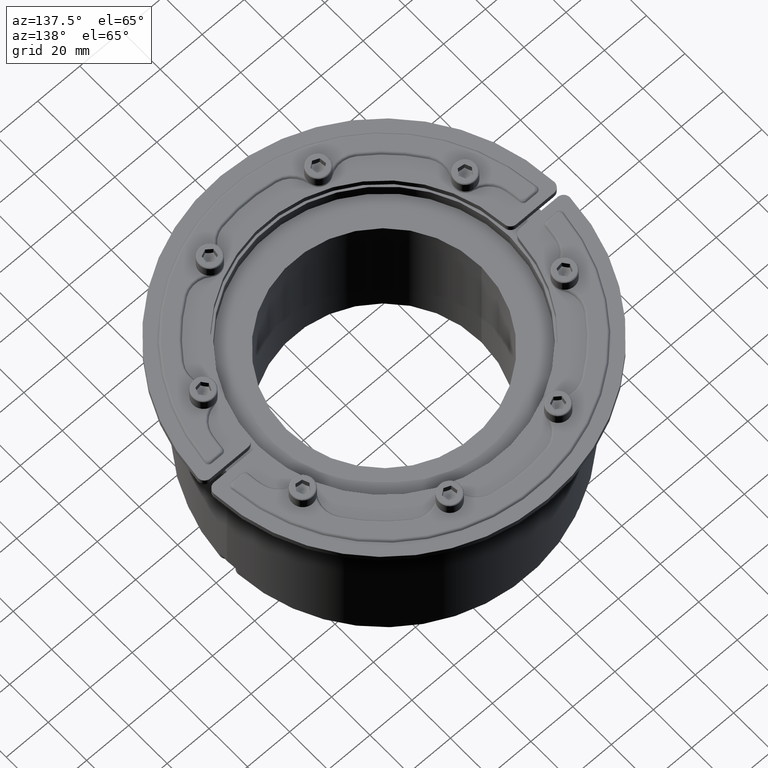
[diagram: clean part render]
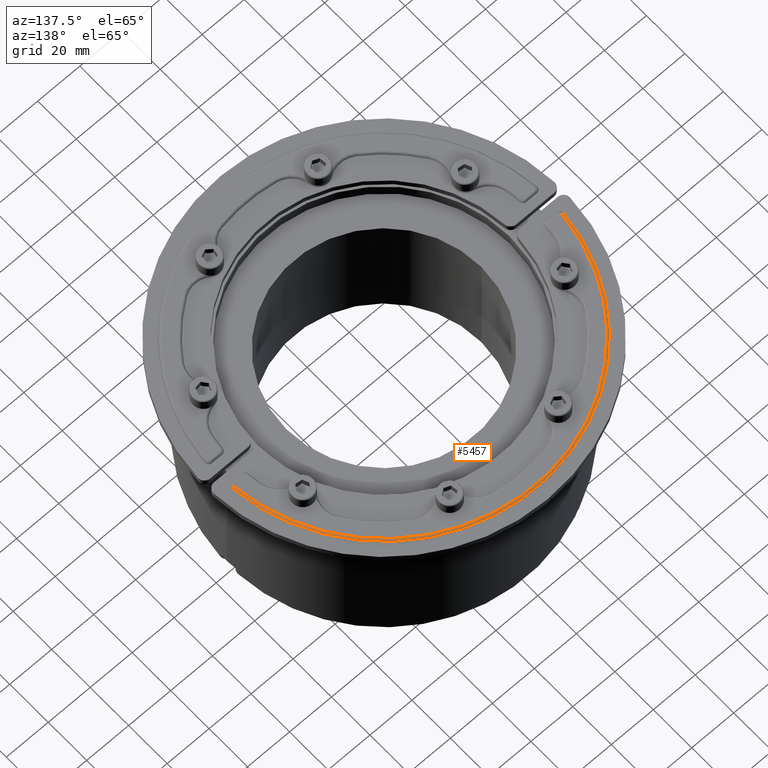
[diagram: same view with one face highlighted and labeled with its STEP entity id]
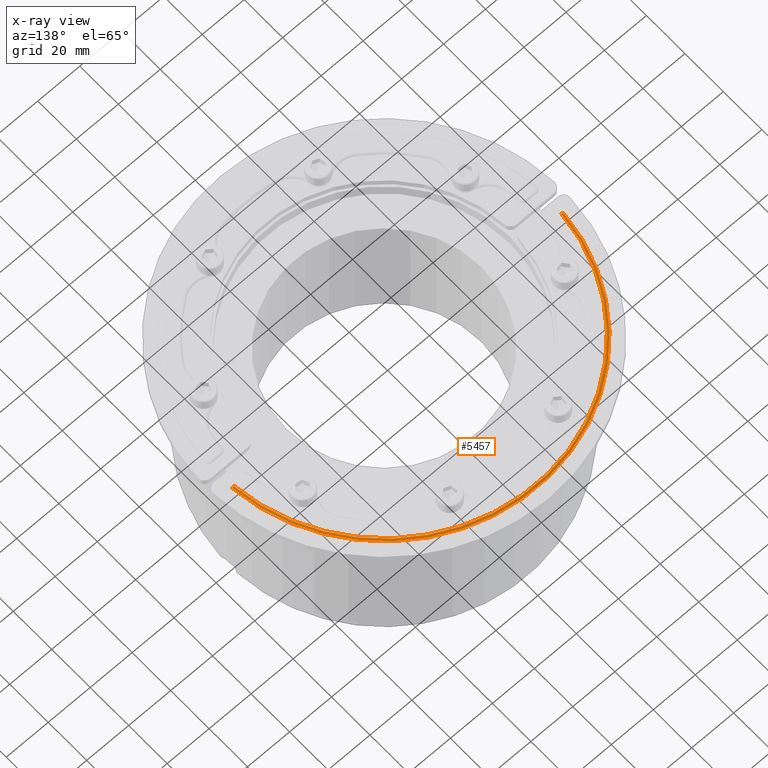
[diagram: x-ray of the same camera — body ghosted, the highlighted face saturated]
A machine part, auxiliary view. The second image highlights one B-rep face of the part: STEP entity #5457.
The next image is the same camera in x-ray: the body ghosted, the highlighted face saturated — about 0% of this face is hidden behind the body in this view.
In plain terms, the highlighted toroidal blend (fillet) surface has major radius 78.3453 mm and minor (blend) radius 1 mm.
Its self-contained STEP definition (entity closure, byte-faithful):
#93=TOROIDAL_SURFACE('',#6036,78.3452994616207,1.);
#568=FACE_OUTER_BOUND('',#895,.T.);
#895=EDGE_LOOP('',(#4249,#4250,#4251,#4252));
#1844=CIRCLE('',#5997,78.3452994616207);
#1874=CIRCLE('',#6035,1.);
#1875=CIRCLE('',#6037,1.);
#1876=CIRCLE('',#6038,79.2113248654052);
#2339=VERTEX_POINT('',#9347);
#2340=VERTEX_POINT('',#9354);
#2379=VERTEX_POINT('',#9525);
#2380=VERTEX_POINT('',#9534);
#2996=EDGE_CURVE('',#2340,#2339,#1844,.T.);
#3045=EDGE_CURVE('',#2340,#2379,#1874,.T.);
#3047=EDGE_CURVE('',#2339,#2380,#1875,.T.);
#3048=EDGE_CURVE('',#2380,#2379,#1876,.T.);
#4249=ORIENTED_EDGE('',*,*,#3047,.T.);
#4250=ORIENTED_EDGE('',*,*,#3048,.T.);
#4251=ORIENTED_EDGE('',*,*,#3045,.F.);
#4252=ORIENTED_EDGE('',*,*,#2996,.T.);
#5457=ADVANCED_FACE('',(#568),#93,.T.);
#5997=AXIS2_PLACEMENT_3D('',#9355,#7284,#7285);
#6035=AXIS2_PLACEMENT_3D('',#9526,#7376,#7377);
#6036=AXIS2_PLACEMENT_3D('',#9533,#7378,#7379);
#6037=AXIS2_PLACEMENT_3D('',#9535,#7380,#7381);
#6038=AXIS2_PLACEMENT_3D('',#9536,#7382,#7383);
#7284=DIRECTION('center_axis',(0.,0.,-1.));
#7285=DIRECTION('ref_axis',(-5.0037135246487E-14,1.,0.));
#7376=DIRECTION('center_axis',(-0.0906142452613713,-0.995886067055721,-4.42262256619462E-15));
#7377=DIRECTION('ref_axis',(0.,-4.44089209850063E-15,1.));
#7378=DIRECTION('center_axis',(0.,0.,-1.));
#7379=DIRECTION('ref_axis',(-1.,0.,0.));
#7380=DIRECTION('center_axis',(-0.0906142452615494,0.995886067055705,0.));
#7381=DIRECTION('ref_axis',(0.,0.,1.));
#7382=DIRECTION('center_axis',(0.,0.,1.));
#7383=DIRECTION('ref_axis',(-4.99879662471163E-14,1.,0.));
#9347=CARTESIAN_POINT('',(78.0229921531349,7.09920018050469,3.99999999999999));
#9354=CARTESIAN_POINT('',(-78.0229921531371,7.0992001804812,3.99999999999999));
#9355=CARTESIAN_POINT('Origin',(0.,0.,3.99999999999999));
#9525=CARTESIAN_POINT('',(-78.8854547864824,7.17767441882231,3.49999999999985));
#9526=CARTESIAN_POINT('Origin',(-78.0229921531371,7.0992001804812,3.));
#9533=CARTESIAN_POINT('Origin',(0.,0.,3.));
#9534=CARTESIAN_POINT('',(78.8854547864804,7.17767441884597,3.4999999999998));
#9535=CARTESIAN_POINT('Origin',(78.0229921531349,7.09920018050469,3.));
#9536=CARTESIAN_POINT('Origin',(-3.87167079708473E-15,0.,3.50000000000001));